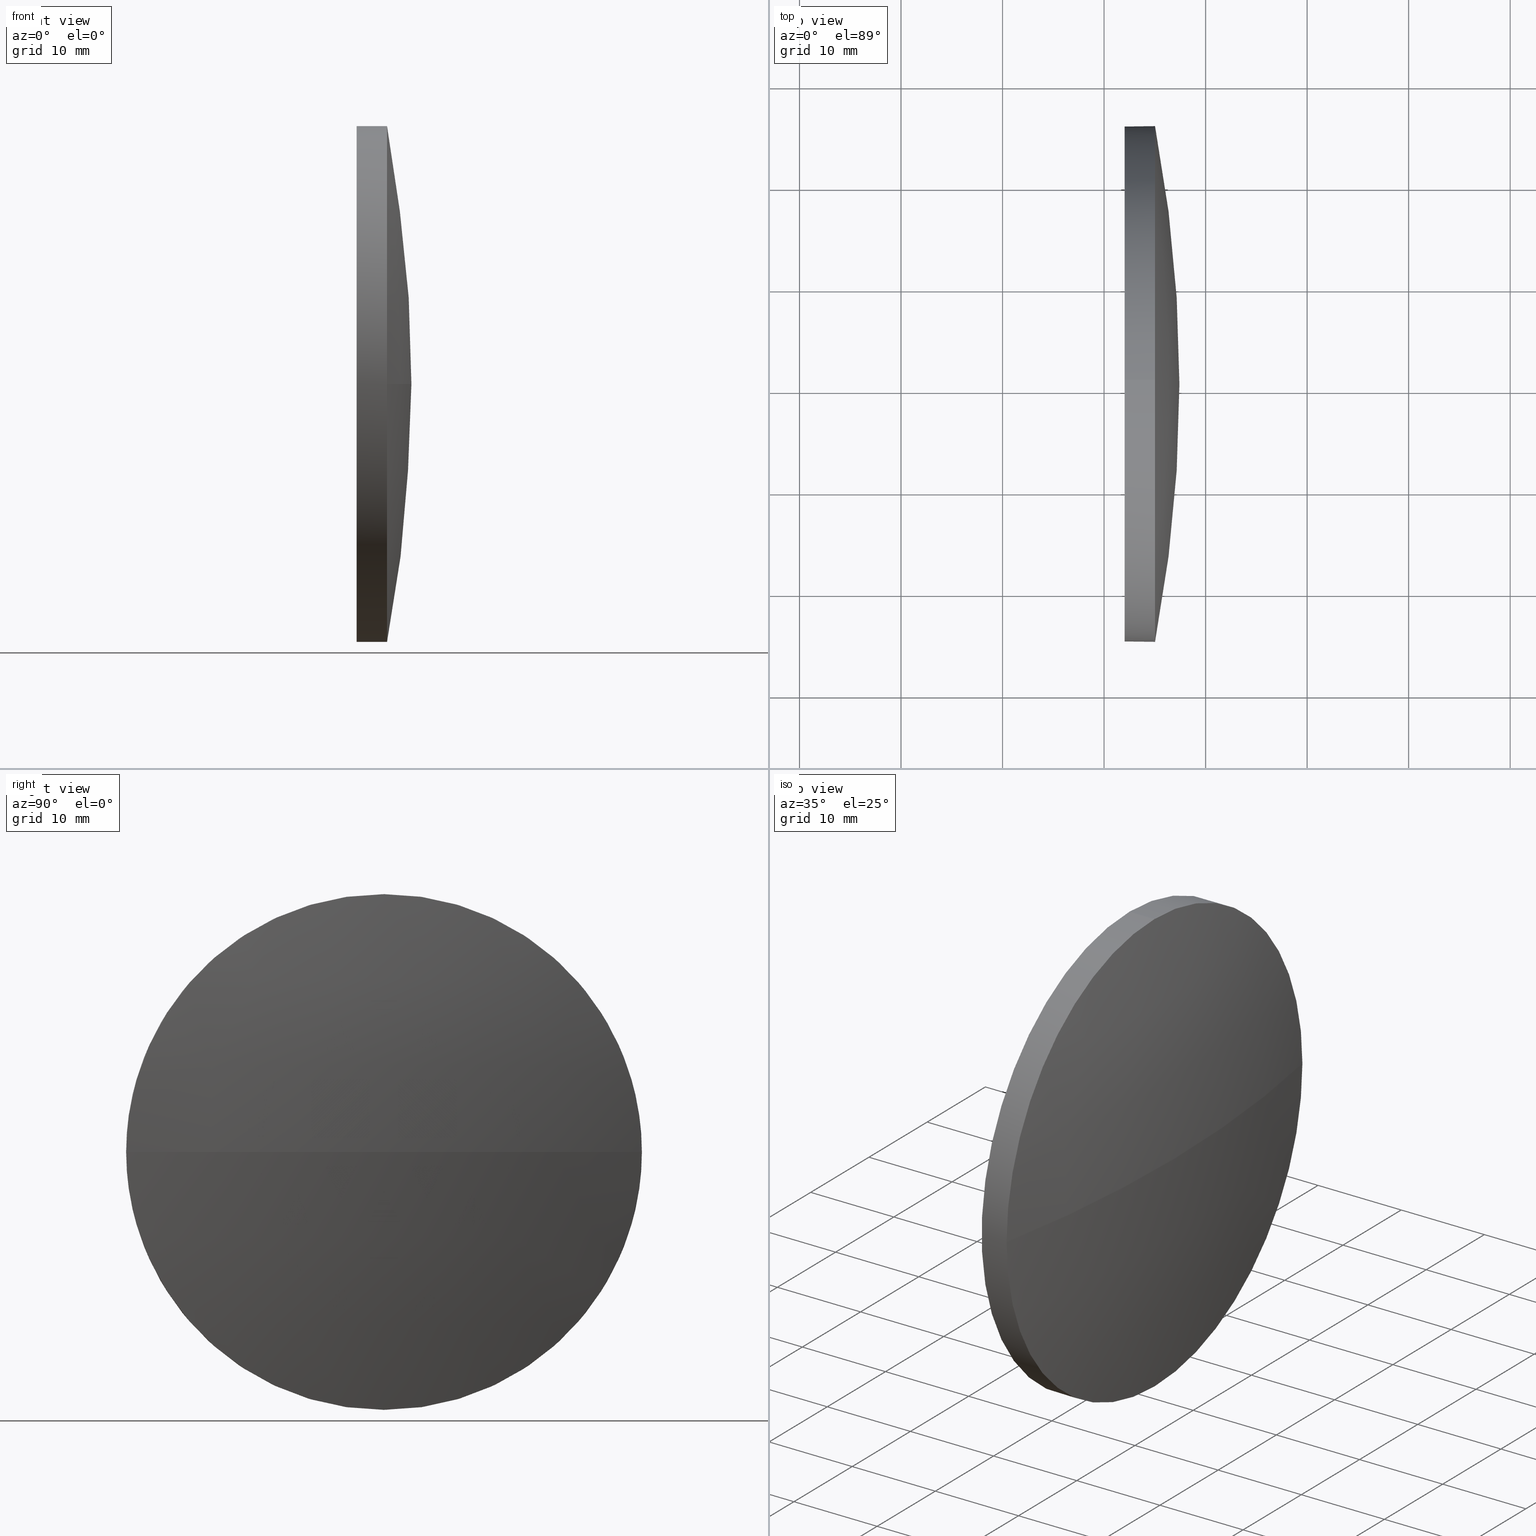
[diagram: canonical four-view strip — front | top / right | iso, engineering-drawing reading convention]
A machine part, canonical four-view strip (front | top / right | iso — engineering-drawing reading convention). The complete STEP part file that produces these views, byte-faithful:
ISO-10303-21;
HEADER;
FILE_DESCRIPTION (( 'STEP AP214' ),
    '1' );
FILE_NAME ('100390.STEP',
    '2019-06-05T01:59:52',
    ( '' ),
    ( '' ),
    'SwSTEP 2.0',
    'SolidWorks 2016',
    '' );
FILE_SCHEMA (( 'AUTOMOTIVE_DESIGN' ));
ENDSEC;

DATA;
#1 = EDGE_LOOP ( 'NONE', ( #43, #149, #3, #76 ) ) ;
#2 = AXIS2_PLACEMENT_3D ( 'NONE', #27, #71, #48 ) ;
#3 = ORIENTED_EDGE ( 'NONE', *, *, #65, .F. ) ;
#4 = AXIS2_PLACEMENT_3D ( 'NONE', #45, #151, #137 ) ;
#5 = FACE_OUTER_BOUND ( 'NONE', #85, .T. ) ;
#6 = PRODUCT_DEFINITION ( 'δ֪', '', #111, #100 ) ;
#7 = VERTEX_POINT ( 'NONE', #178 ) ;
#8 = CARTESIAN_POINT ( 'NONE',  ( 101.8124867459092400, 130.4671098528243100, 0.0000000000000000000 ) ) ;
#9 = DIRECTION ( 'NONE',  ( -0.0000000000000000000, 0.0000000000000000000, -1.000000000000000000 ) ) ;
#10 = DIRECTION ( 'NONE',  ( -1.000000000000000000, -0.0000000000000000000, -0.0000000000000000000 ) ) ;
#11 = CIRCLE ( 'NONE', #2, 135.6083333333331800 ) ;
#12 = DIRECTION ( 'NONE',  ( 0.0000000000000000000, 0.0000000000000000000, 1.000000000000000000 ) ) ;
#13 = AXIS2_PLACEMENT_3D ( 'NONE', #140, #10, #155 ) ;
#14 = ADVANCED_FACE ( 'NONE', ( #176 ), #144, .T. ) ;
#15 = ORIENTED_EDGE ( 'NONE', *, *, #22, .F. ) ;
#16 = CIRCLE ( 'NONE', #172, 25.40000000000000600 ) ;
#17 =( GEOMETRIC_REPRESENTATION_CONTEXT ( 3 ) GLOBAL_UNCERTAINTY_ASSIGNED_CONTEXT ( ( #51 ) ) GLOBAL_UNIT_ASSIGNED_CONTEXT ( ( #160, #128, #34 ) ) REPRESENTATION_CONTEXT ( 'NONE', 'WORKASPACE' ) );
#18 = CIRCLE ( 'NONE', #84, 25.40000000000000600 ) ;
#19 = EDGE_LOOP ( 'NONE', ( #15, #35, #175, #57, #186 ) ) ;
#20 = CARTESIAN_POINT ( 'NONE',  ( 220.3307464569769000, 130.4671098528243900, 0.0000000000000000000 ) ) ;
#21 = DIRECTION ( 'NONE',  ( 0.0000000000000000000, 0.0000000000000000000, 1.000000000000000000 ) ) ;
#22 = EDGE_CURVE ( 'NONE', #47, #122, #136, .T. ) ;
#23 = SPHERICAL_SURFACE ( 'NONE', #152, 135.6083333333331800 ) ;
#24 = DIRECTION ( 'NONE',  ( 0.0000000000000000000, 0.0000000000000000000, 1.000000000000000000 ) ) ;
#25 = CARTESIAN_POINT ( 'NONE',  ( 232.0208200792423800, 130.4671098528243900, -25.40000000000000600 ) ) ;
#26 = VECTOR ( 'NONE', #88, 1000.000000000000000 ) ;
#27 = CARTESIAN_POINT ( 'NONE',  ( 101.8124867459092400, 130.4671098528243100, 0.0000000000000000000 ) ) ;
#28 = STYLED_ITEM ( 'NONE', ( #42 ), #145 ) ;
#29 = SURFACE_SIDE_STYLE ('',( #150 ) ) ;
#30 = ADVANCED_FACE ( 'NONE', ( #95 ), #23, .T. ) ;
#31 = DIRECTION ( 'NONE',  ( 0.0000000000000000000, 0.0000000000000000000, -1.000000000000000000 ) ) ;
#32 = CYLINDRICAL_SURFACE ( 'NONE', #55, 25.40000000000000600 ) ;
#33 = STYLED_ITEM ( 'NONE', ( #64 ), #135 ) ;
#34 =( NAMED_UNIT ( * ) SI_UNIT ( $, .STERADIAN. ) SOLID_ANGLE_UNIT ( ) );
#35 = ORIENTED_EDGE ( 'NONE', *, *, #82, .T. ) ;
#36 = SPHERICAL_SURFACE ( 'NONE', #49, 135.6083333333331800 ) ;
#37 = MECHANICAL_DESIGN_GEOMETRIC_PRESENTATION_REPRESENTATION (  '', ( #28 ), #158 ) ;
#38 = ORIENTED_EDGE ( 'NONE', *, *, #72, .T. ) ;
#39 = CLOSED_SHELL ( 'NONE', ( #14, #30, #141, #56, #184 ) ) ;
#40 = PRESENTATION_LAYER_ASSIGNMENT (  '', '', ( #28 ) ) ;
#41 = DIRECTION ( 'NONE',  ( -0.0000000000000000000, 0.0000000000000000000, -1.000000000000000000 ) ) ;
#42 = PRESENTATION_STYLE_ASSIGNMENT (( #142 ) ) ;
#43 = ORIENTED_EDGE ( 'NONE', *, *, #74, .F. ) ;
#44 = CARTESIAN_POINT ( 'NONE',  ( 235.0208200792424100, 155.8671098528243700, 0.0000000000000000000 ) ) ;
#45 = CARTESIAN_POINT ( 'NONE',  ( 235.0208200792423800, 130.4671098528243900, 0.0000000000000000000 ) ) ;
#46 = FILL_AREA_STYLE_COLOUR ( '', #132 ) ;
#47 = VERTEX_POINT ( 'NONE', #118 ) ;
#48 = DIRECTION ( 'NONE',  ( 1.000000000000000000, 0.0000000000000000000, 0.0000000000000000000 ) ) ;
#49 = AXIS2_PLACEMENT_3D ( 'NONE', #8, #9, #183 ) ;
#50 = FILL_AREA_STYLE ('',( #46 ) ) ;
#51 = UNCERTAINTY_MEASURE_WITH_UNIT (LENGTH_MEASURE( 1.000000000000000100E-005 ), #160, 'distance_accuracy_value', 'NONE');
#52 = ORIENTED_EDGE ( 'NONE', *, *, #65, .T. ) ;
#53 =( GEOMETRIC_REPRESENTATION_CONTEXT ( 3 ) GLOBAL_UNCERTAINTY_ASSIGNED_CONTEXT ( ( #120 ) ) GLOBAL_UNIT_ASSIGNED_CONTEXT ( ( #62, #104, #58 ) ) REPRESENTATION_CONTEXT ( 'NONE', 'WORKASPACE' ) );
#54 = CIRCLE ( 'NONE', #13, 25.40000000000000600 ) ;
#55 = AXIS2_PLACEMENT_3D ( 'NONE', #103, #167, #78 ) ;
#56 = ADVANCED_FACE ( 'NONE', ( #101 ), #32, .T. ) ;
#57 = ORIENTED_EDGE ( 'NONE', *, *, #98, .T. ) ;
#58 =( NAMED_UNIT ( * ) SI_UNIT ( $, .STERADIAN. ) SOLID_ANGLE_UNIT ( ) );
#59 = CARTESIAN_POINT ( 'NONE',  ( 232.0208200792423800, 130.4671098528243900, 0.0000000000000000000 ) ) ;
#60 = ORIENTED_EDGE ( 'NONE', *, *, #143, .T. ) ;
#61 =( LENGTH_UNIT ( ) NAMED_UNIT ( * ) SI_UNIT ( .MILLI., .METRE. ) );
#62 =( LENGTH_UNIT ( ) NAMED_UNIT ( * ) SI_UNIT ( .MILLI., .METRE. ) );
#63 = VERTEX_POINT ( 'NONE', #119 ) ;
#64 = PRESENTATION_STYLE_ASSIGNMENT (( #94 ) ) ;
#65 = EDGE_CURVE ( 'NONE', #73, #66, #133, .T. ) ;
#66 = VERTEX_POINT ( 'NONE', #44 ) ;
#67 = CIRCLE ( 'NONE', #182, 25.40000000000000600 ) ;
#68 = ORIENTED_EDGE ( 'NONE', *, *, #74, .T. ) ;
#69 = CARTESIAN_POINT ( 'NONE',  ( 235.0208200792423800, 130.4671098528243900, 25.40000000000000600 ) ) ;
#70 = CARTESIAN_POINT ( 'NONE',  ( 237.4208200792424200, 130.4671098528243100, 0.0000000000000000000 ) ) ;
#71 = DIRECTION ( 'NONE',  ( -0.0000000000000000000, 0.0000000000000000000, 1.000000000000000000 ) ) ;
#72 = EDGE_CURVE ( 'NONE', #66, #47, #18, .T. ) ;
#73 = VERTEX_POINT ( 'NONE', #69 ) ;
#74 = EDGE_CURVE ( 'NONE', #112, #7, #89, .T. ) ;
#75 = COLOUR_RGB ( '',1.000000000000000000, 1.000000000000000000, 1.000000000000000000 ) ;
#76 = ORIENTED_EDGE ( 'NONE', *, *, #87, .F. ) ;
#77 = CARTESIAN_POINT ( 'NONE',  ( 101.8124867459092400, 130.4671098528243100, 0.0000000000000000000 ) ) ;
#78 = DIRECTION ( 'NONE',  ( 0.0000000000000000000, 0.0000000000000000000, 1.000000000000000000 ) ) ;
#79 = DIRECTION ( 'NONE',  ( 0.0000000000000000000, 0.0000000000000000000, 1.000000000000000000 ) ) ;
#80 = FILL_AREA_STYLE_COLOUR ( '', #75 ) ;
#81 = DIRECTION ( 'NONE',  ( 0.0000000000000000000, 1.000000000000000000, 1.224646799147353000E-016 ) ) ;
#82 = EDGE_CURVE ( 'NONE', #47, #7, #16, .T. ) ;
#83 = APPLICATION_PROTOCOL_DEFINITION ( 'draft international standard', 'automotive_design', 1998, #93 ) ;
#84 = AXIS2_PLACEMENT_3D ( 'NONE', #121, #138, #79 ) ;
#85 = EDGE_LOOP ( 'NONE', ( #60, #99 ) ) ;
#86 = ORIENTED_EDGE ( 'NONE', *, *, #98, .F. ) ;
#87 = EDGE_CURVE ( 'NONE', #7, #73, #54, .T. ) ;
#88 = DIRECTION ( 'NONE',  ( -1.000000000000000000, -0.0000000000000000000, -0.0000000000000000000 ) ) ;
#89 = CIRCLE ( 'NONE', #174, 135.6083333333331800 ) ;
#90 = APPLICATION_PROTOCOL_DEFINITION ( 'draft international standard', 'automotive_design', 1998, #168 ) ;
#91 = SURFACE_STYLE_FILL_AREA ( #50 ) ;
#92 = CARTESIAN_POINT ( 'NONE',  ( 232.0208200792423800, 130.4671098528243900, 0.0000000000000000000 ) ) ;
#93 = APPLICATION_CONTEXT ( 'automotive_design' ) ;
#94 = SURFACE_STYLE_USAGE ( .BOTH. , #146 ) ;
#95 = FACE_OUTER_BOUND ( 'NONE', #148, .T. ) ;
#96 = AXIS2_PLACEMENT_3D ( 'NONE', #109, #173, #31 ) ;
#97 = EDGE_LOOP ( 'NONE', ( #38, #127, #170, #86, #52 ) ) ;
#98 = EDGE_CURVE ( 'NONE', #73, #63, #165, .T. ) ;
#99 = ORIENTED_EDGE ( 'NONE', *, *, #108, .T. ) ;
#100 = PRODUCT_DEFINITION_CONTEXT ( 'detailed design', #93, 'design' ) ;
#101 = FACE_OUTER_BOUND ( 'NONE', #19, .T. ) ;
#102 = PRODUCT ( '100390', '100390', '', ( #113 ) ) ;
#103 = CARTESIAN_POINT ( 'NONE',  ( 220.3307464569769000, 130.4671098528243900, 0.0000000000000000000 ) ) ;
#104 =( NAMED_UNIT ( * ) PLANE_ANGLE_UNIT ( ) SI_UNIT ( $, .RADIAN. ) );
#105 = DIRECTION ( 'NONE',  ( 0.0000000000000000000, 0.0000000000000000000, 1.000000000000000000 ) ) ;
#106 = DIRECTION ( 'NONE',  ( 0.0000000000000000000, 1.224646799147353200E-016, -1.000000000000000000 ) ) ;
#107 = FILL_AREA_STYLE ('',( #80 ) ) ;
#108 = EDGE_CURVE ( 'NONE', #122, #63, #116, .T. ) ;
#109 = CARTESIAN_POINT ( 'NONE',  ( 232.0208200792423800, 130.4671098528243900, 0.0000000000000000000 ) ) ;
#110 = DIRECTION ( 'NONE',  ( 1.000000000000000000, 0.0000000000000000000, 0.0000000000000000000 ) ) ;
#111 = PRODUCT_DEFINITION_FORMATION_WITH_SPECIFIED_SOURCE ( '�κ�', '', #102, .NOT_KNOWN. ) ;
#112 = VERTEX_POINT ( 'NONE', #70 ) ;
#113 = PRODUCT_CONTEXT ( 'NONE', #168, 'mechanical' ) ;
#114 = PRODUCT_DEFINITION_SHAPE ( 'NONE', 'NONE',  #6 ) ;
#115 = AXIS2_PLACEMENT_3D ( 'NONE', #181, #129, #110 ) ;
#116 = CIRCLE ( 'NONE', #177, 25.40000000000000600 ) ;
#117 = DIRECTION ( 'NONE',  ( 0.0000000000000000000, 1.000000000000000000, 0.0000000000000000000 ) ) ;
#118 = CARTESIAN_POINT ( 'NONE',  ( 235.0208200792423800, 130.4671098528243900, -25.40000000000000600 ) ) ;
#119 = CARTESIAN_POINT ( 'NONE',  ( 232.0208200792423800, 130.4671098528243900, 25.40000000000000600 ) ) ;
#120 = UNCERTAINTY_MEASURE_WITH_UNIT (LENGTH_MEASURE( 1.000000000000000100E-005 ), #62, 'distance_accuracy_value', 'NONE');
#121 = CARTESIAN_POINT ( 'NONE',  ( 235.0208200792423800, 130.4671098528243900, 0.0000000000000000000 ) ) ;
#122 = VERTEX_POINT ( 'NONE', #25 ) ;
#123 = DIRECTION ( 'NONE',  ( -1.000000000000000000, -0.0000000000000000000, -0.0000000000000000000 ) ) ;
#124 = DIRECTION ( 'NONE',  ( -1.000000000000000000, -0.0000000000000000000, -0.0000000000000000000 ) ) ;
#125 = FACE_OUTER_BOUND ( 'NONE', #1, .T. ) ;
#126 =( NAMED_UNIT ( * ) PLANE_ANGLE_UNIT ( ) SI_UNIT ( $, .RADIAN. ) );
#127 = ORIENTED_EDGE ( 'NONE', *, *, #22, .T. ) ;
#128 =( NAMED_UNIT ( * ) PLANE_ANGLE_UNIT ( ) SI_UNIT ( $, .RADIAN. ) );
#129 = DIRECTION ( 'NONE',  ( 0.0000000000000000000, 0.0000000000000000000, 1.000000000000000000 ) ) ;
#130 = PRODUCT_RELATED_PRODUCT_CATEGORY ( 'part', '', ( #102 ) ) ;
#131 = EDGE_CURVE ( 'NONE', #112, #66, #11, .T. ) ;
#132 = COLOUR_RGB ( '',1.000000000000000000, 1.000000000000000000, 1.000000000000000000 ) ;
#133 = CIRCLE ( 'NONE', #4, 25.40000000000000600 ) ;
#134 = DIRECTION ( 'NONE',  ( -1.000000000000000000, -0.0000000000000000000, -0.0000000000000000000 ) ) ;
#135 = ADVANCED_BREP_SHAPE_REPRESENTATION ( '100390', ( #145, #115 ), #53 ) ;
#136 = LINE ( 'NONE', #179, #26 ) ;
#137 = DIRECTION ( 'NONE',  ( 0.0000000000000000000, 0.0000000000000000000, 1.000000000000000000 ) ) ;
#138 = DIRECTION ( 'NONE',  ( -1.000000000000000000, -0.0000000000000000000, -0.0000000000000000000 ) ) ;
#139 = CARTESIAN_POINT ( 'NONE',  ( 235.0208200792423800, 130.4671098528243900, 0.0000000000000000000 ) ) ;
#140 = CARTESIAN_POINT ( 'NONE',  ( 235.0208200792423800, 130.4671098528243900, 0.0000000000000000000 ) ) ;
#141 = ADVANCED_FACE ( 'NONE', ( #125 ), #36, .T. ) ;
#142 = SURFACE_STYLE_USAGE ( .BOTH. , #29 ) ;
#143 = EDGE_CURVE ( 'NONE', #63, #122, #67, .T. ) ;
#144 = CYLINDRICAL_SURFACE ( 'NONE', #163, 25.40000000000000600 ) ;
#145 = MANIFOLD_SOLID_BREP ( '��ת1', #39 ) ;
#146 = SURFACE_SIDE_STYLE ('',( #91 ) ) ;
#147 = ORIENTED_EDGE ( 'NONE', *, *, #131, .F. ) ;
#148 = EDGE_LOOP ( 'NONE', ( #147, #68, #153, #159 ) ) ;
#149 = ORIENTED_EDGE ( 'NONE', *, *, #131, .T. ) ;
#150 = SURFACE_STYLE_FILL_AREA ( #107 ) ;
#151 = DIRECTION ( 'NONE',  ( -1.000000000000000000, -0.0000000000000000000, -0.0000000000000000000 ) ) ;
#152 = AXIS2_PLACEMENT_3D ( 'NONE', #77, #41, #117 ) ;
#153 = ORIENTED_EDGE ( 'NONE', *, *, #82, .F. ) ;
#154 = SHAPE_DEFINITION_REPRESENTATION ( #114, #135 ) ;
#155 = DIRECTION ( 'NONE',  ( 0.0000000000000000000, 0.0000000000000000000, 1.000000000000000000 ) ) ;
#156 =( NAMED_UNIT ( * ) SI_UNIT ( $, .STERADIAN. ) SOLID_ANGLE_UNIT ( ) );
#157 = DIRECTION ( 'NONE',  ( -1.000000000000000000, -0.0000000000000000000, -0.0000000000000000000 ) ) ;
#158 =( GEOMETRIC_REPRESENTATION_CONTEXT ( 3 ) GLOBAL_UNCERTAINTY_ASSIGNED_CONTEXT ( ( #180 ) ) GLOBAL_UNIT_ASSIGNED_CONTEXT ( ( #61, #126, #156 ) ) REPRESENTATION_CONTEXT ( 'NONE', 'WORKASPACE' ) );
#159 = ORIENTED_EDGE ( 'NONE', *, *, #72, .F. ) ;
#160 =( LENGTH_UNIT ( ) NAMED_UNIT ( * ) SI_UNIT ( .MILLI., .METRE. ) );
#161 = PRESENTATION_LAYER_ASSIGNMENT (  '', '', ( #33 ) ) ;
#162 = VECTOR ( 'NONE', #123, 1000.000000000000000 ) ;
#163 = AXIS2_PLACEMENT_3D ( 'NONE', #20, #134, #21 ) ;
#164 = MECHANICAL_DESIGN_GEOMETRIC_PRESENTATION_REPRESENTATION (  '', ( #33 ), #17 ) ;
#165 = LINE ( 'NONE', #166, #162 ) ;
#166 = CARTESIAN_POINT ( 'NONE',  ( 220.3307464569769000, 130.4671098528243900, 25.40000000000000600 ) ) ;
#167 = DIRECTION ( 'NONE',  ( -1.000000000000000000, -0.0000000000000000000, -0.0000000000000000000 ) ) ;
#168 = APPLICATION_CONTEXT ( 'automotive_design' ) ;
#169 = DIRECTION ( 'NONE',  ( -1.000000000000000000, -0.0000000000000000000, -0.0000000000000000000 ) ) ;
#170 = ORIENTED_EDGE ( 'NONE', *, *, #143, .F. ) ;
#171 = PLANE ( 'NONE',  #96 ) ;
#172 = AXIS2_PLACEMENT_3D ( 'NONE', #139, #157, #24 ) ;
#173 = DIRECTION ( 'NONE',  ( 1.000000000000000000, 0.0000000000000000000, 0.0000000000000000000 ) ) ;
#174 = AXIS2_PLACEMENT_3D ( 'NONE', #185, #106, #81 ) ;
#175 = ORIENTED_EDGE ( 'NONE', *, *, #87, .T. ) ;
#176 = FACE_OUTER_BOUND ( 'NONE', #97, .T. ) ;
#177 = AXIS2_PLACEMENT_3D ( 'NONE', #59, #124, #105 ) ;
#178 = CARTESIAN_POINT ( 'NONE',  ( 235.0208200792424100, 105.0671098528243300, -3.110602869834275700E-015 ) ) ;
#179 = CARTESIAN_POINT ( 'NONE',  ( 220.3307464569769000, 130.4671098528243900, -25.40000000000000600 ) ) ;
#180 = UNCERTAINTY_MEASURE_WITH_UNIT (LENGTH_MEASURE( 1.000000000000000100E-005 ), #61, 'distance_accuracy_value', 'NONE');
#181 = CARTESIAN_POINT ( 'NONE',  ( 0.0000000000000000000, 0.0000000000000000000, 0.0000000000000000000 ) ) ;
#182 = AXIS2_PLACEMENT_3D ( 'NONE', #92, #169, #12 ) ;
#183 = DIRECTION ( 'NONE',  ( 0.0000000000000000000, 1.000000000000000000, 0.0000000000000000000 ) ) ;
#184 = ADVANCED_FACE ( 'NONE', ( #5 ), #171, .F. ) ;
#185 = CARTESIAN_POINT ( 'NONE',  ( 101.8124867459092400, 130.4671098528243100, 0.0000000000000000000 ) ) ;
#186 = ORIENTED_EDGE ( 'NONE', *, *, #108, .F. ) ;
ENDSEC;
END-ISO-10303-21;
